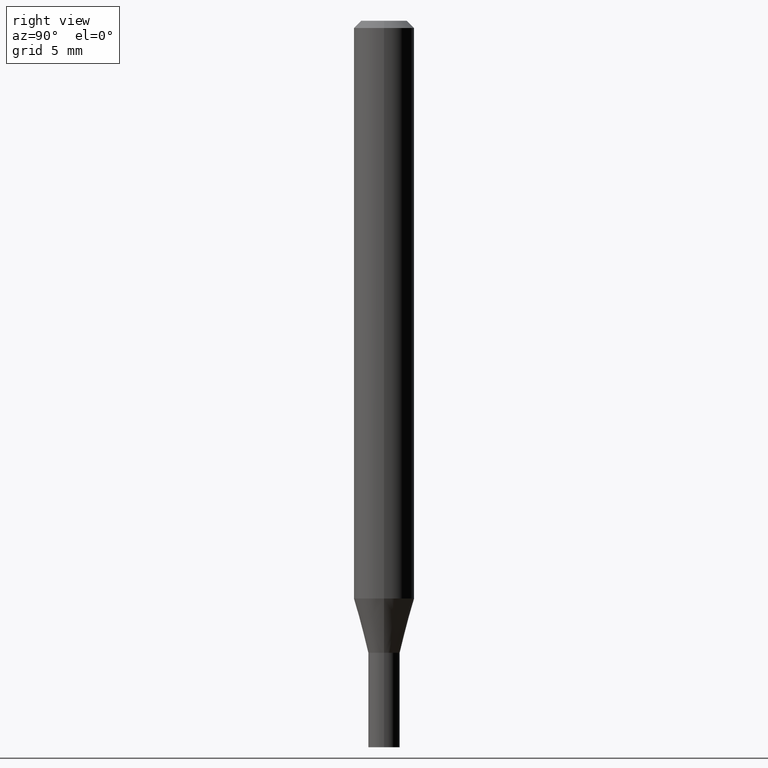
[diagram: clean part render]
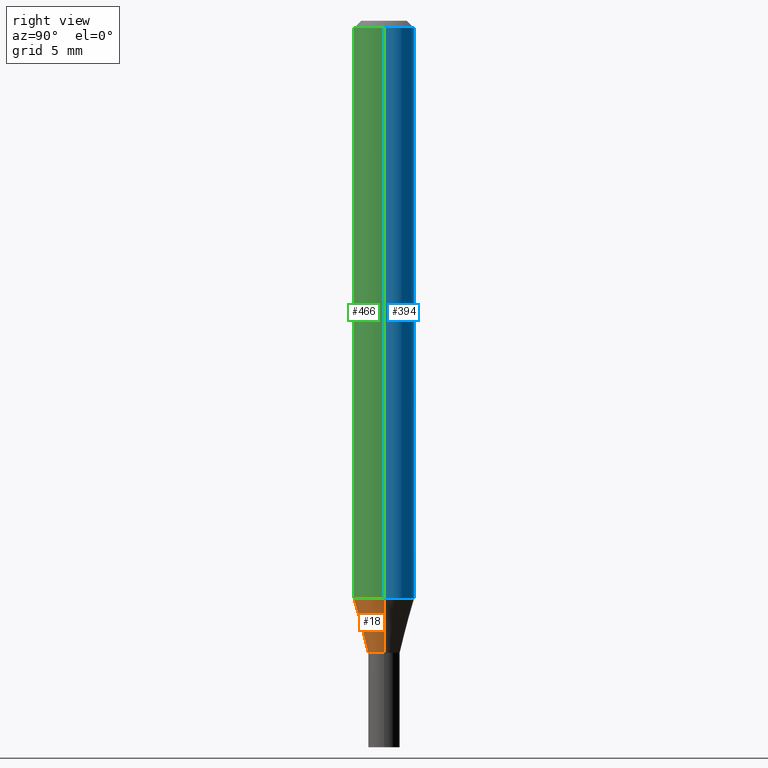
[diagram: same view with three faces highlighted in distinct colors, each labeled with its STEP entity id]
A machine part, right view with three faces highlighted in distinct colors.
Their STEP definitions:

[orange] entity #18 — the highlighted conical surface has half-angle 15 deg.
#14 = VERTEX_POINT ( 'NONE', #154 ) ;
#18 = ADVANCED_FACE ( 'NONE', ( #293 ), #266, .T. ) ;
#25 = DIRECTION ( 'NONE',  ( -2.445468806185136597E-29, 3.491481338843145583E-15, 1.000000000000000000 ) ) ;
#51 = CARTESIAN_POINT ( 'NONE',  ( 0.03249999999999991784, -4.783329434215109105E-15, -1.305000000000000160 ) ) ;
#68 = DIRECTION ( 'NONE',  ( -2.445468806185136597E-29, 3.491481338843145583E-15, 1.000000000000000000 ) ) ;
#76 = ORIENTED_EDGE ( 'NONE', *, *, #382, .T. ) ;
#121 = VERTEX_POINT ( 'NONE', #408 ) ;
#145 = EDGE_CURVE ( 'NONE', #427, #14, #377, .T. ) ;
#154 = CARTESIAN_POINT ( 'NONE',  ( -0.06250000000000000000, -3.721382364833005349E-15, -1.193038475772933760 ) ) ;
#170 = CARTESIAN_POINT ( 'NONE',  ( -0.03249999999999991784, -4.325456758068273381E-15, -1.305000000000000160 ) ) ;
#174 = AXIS2_PLACEMENT_3D ( 'NONE', #459, #68, #280 ) ;
#180 = LINE ( 'NONE', #323, #241 ) ;
#220 = ORIENTED_EDGE ( 'NONE', *, *, #145, .F. ) ;
#224 = DIRECTION ( 'NONE',  ( -0.2588190451025211836, 5.211531920934547886E-15, 0.9659258262890679791 ) ) ;
#241 = VECTOR ( 'NONE', #465, 39.37007874015748854 ) ;
#248 = EDGE_CURVE ( 'NONE', #14, #121, #352, .T. ) ;
#251 = AXIS2_PLACEMENT_3D ( 'NONE', #346, #344, #457 ) ;
#266 = CONICAL_SURFACE ( 'NONE', #414, 0.03249999999999991784, 0.2617993877991499074 ) ;
#280 = DIRECTION ( 'NONE',  ( 1.000000000000000000, -6.982962677686276177E-15, 0.000000000000000000 ) ) ;
#293 = FACE_OUTER_BOUND ( 'NONE', #442, .T. ) ;
#297 = CIRCLE ( 'NONE', #174, 0.03249999999999991784 ) ;
#303 = CARTESIAN_POINT ( 'NONE',  ( 3.191336792071603685E-29, -4.556383147190305752E-15, -1.305000000000000160 ) ) ;
#323 = CARTESIAN_POINT ( 'NONE',  ( 0.03249999999999991784, -4.783329434215109105E-15, -1.305000000000000160 ) ) ;
#334 = DIRECTION ( 'NONE',  ( 1.000000000000000000, -6.982962677686276177E-15, 0.000000000000000000 ) ) ;
#341 = EDGE_CURVE ( 'NONE', #427, #436, #297, .T. ) ;
#344 = DIRECTION ( 'NONE',  ( -2.445468806185136597E-29, 3.491481338843145583E-15, 1.000000000000000000 ) ) ;
#346 = CARTESIAN_POINT ( 'NONE',  ( 2.917538377081371069E-29, -4.165471574683068754E-15, -1.193038475772933760 ) ) ;
#352 = CIRCLE ( 'NONE', #251, 0.06250000000000000000 ) ;
#374 = ORIENTED_EDGE ( 'NONE', *, *, #248, .F. ) ;
#377 = LINE ( 'NONE', #170, #379 ) ;
#379 = VECTOR ( 'NONE', #224, 39.37007874015748854 ) ;
#382 = EDGE_CURVE ( 'NONE', #436, #121, #180, .T. ) ;
#406 = ORIENTED_EDGE ( 'NONE', *, *, #341, .T. ) ;
#408 = CARTESIAN_POINT ( 'NONE',  ( 0.06250000000000000000, -4.601906742038460423E-15, -1.193038475772933760 ) ) ;
#414 = AXIS2_PLACEMENT_3D ( 'NONE', #303, #25, #334 ) ;
#427 = VERTEX_POINT ( 'NONE', #437 ) ;
#436 = VERTEX_POINT ( 'NONE', #51 ) ;
#437 = CARTESIAN_POINT ( 'NONE',  ( -0.03249999999999991784, -4.023419561450638971E-15, -1.305000000000000160 ) ) ;
#442 = EDGE_LOOP ( 'NONE', ( #220, #406, #76, #374 ) ) ;
#457 = DIRECTION ( 'NONE',  ( 1.000000000000000000, -6.982962677686270655E-15, 0.000000000000000000 ) ) ;
#459 = CARTESIAN_POINT ( 'NONE',  ( 3.191336792071603685E-29, -4.556383147190305752E-15, -1.305000000000000160 ) ) ;
#465 = DIRECTION ( 'NONE',  ( 0.2588190451025211836, 1.565188264969622559E-15, 0.9659258262890679791 ) ) ;

[blue] entity #394 — the highlighted cylindrical surface (edge-blend (fillet) strip) has radius 1.5875 mm, axis along (-0, 0, 1).
#3 = ORIENTED_EDGE ( 'NONE', *, *, #453, .F. ) ;
#12 = CIRCLE ( 'NONE', #288, 0.06250000000000000000 ) ;
#14 = VERTEX_POINT ( 'NONE', #154 ) ;
#19 = VERTEX_POINT ( 'NONE', #86 ) ;
#43 = EDGE_CURVE ( 'NONE', #356, #19, #12, .T. ) ;
#50 = DIRECTION ( 'NONE',  ( 1.000000000000000000, -6.982962677686266711E-15, 0.000000000000000000 ) ) ;
#52 = EDGE_LOOP ( 'NONE', ( #302, #292, #325, #3 ) ) ;
#53 = DIRECTION ( 'NONE',  ( 1.000000000000000000, -6.982962677686270655E-15, 0.000000000000000000 ) ) ;
#58 = DIRECTION ( 'NONE',  ( -2.445468806185136597E-29, 3.491481338843145583E-15, 1.000000000000000000 ) ) ;
#77 = EDGE_CURVE ( 'NONE', #121, #14, #233, .T. ) ;
#82 = AXIS2_PLACEMENT_3D ( 'NONE', #464, #109, #250 ) ;
#86 = CARTESIAN_POINT ( 'NONE',  ( -0.06250000000000000000, -1.664832687532795300E-15, -0.01499999999999999944 ) ) ;
#91 = EDGE_CURVE ( 'NONE', #14, #19, #401, .T. ) ;
#109 = DIRECTION ( 'NONE',  ( -2.445468806185136597E-29, 3.491481338843145583E-15, 1.000000000000000000 ) ) ;
#111 = VECTOR ( 'NONE', #403, 39.37007874015748143 ) ;
#121 = VERTEX_POINT ( 'NONE', #408 ) ;
#144 = FACE_OUTER_BOUND ( 'NONE', #52, .T. ) ;
#154 = CARTESIAN_POINT ( 'NONE',  ( -0.06250000000000000000, -3.721382364833005349E-15, -1.193038475772933760 ) ) ;
#200 = AXIS2_PLACEMENT_3D ( 'NONE', #222, #439, #53 ) ;
#222 = CARTESIAN_POINT ( 'NONE',  ( 2.917538377081371069E-29, -4.165471574683068754E-15, -1.193038475772933760 ) ) ;
#228 = CARTESIAN_POINT ( 'NONE',  ( -0.06250000000000000000, 4.440892098500626162E-16, -3.074334431409316114E-30 ) ) ;
#233 = CIRCLE ( 'NONE', #200, 0.06250000000000000000 ) ;
#250 = DIRECTION ( 'NONE',  ( 1.000000000000000000, -6.982962677686266711E-15, 4.876176775795935793E-29 ) ) ;
#265 = DIRECTION ( 'NONE',  ( -2.445468806185136877E-29, 3.491481338843145188E-15, 1.000000000000000000 ) ) ;
#269 = VECTOR ( 'NONE', #265, 39.37007874015748143 ) ;
#285 = CYLINDRICAL_SURFACE ( 'NONE', #82, 0.06250000000000000000 ) ;
#288 = AXIS2_PLACEMENT_3D ( 'NONE', #371, #58, #50 ) ;
#292 = ORIENTED_EDGE ( 'NONE', *, *, #91, .T. ) ;
#302 = ORIENTED_EDGE ( 'NONE', *, *, #77, .T. ) ;
#325 = ORIENTED_EDGE ( 'NONE', *, *, #43, .F. ) ;
#356 = VERTEX_POINT ( 'NONE', #419 ) ;
#371 = CARTESIAN_POINT ( 'NONE',  ( 3.668203209277705088E-31, -5.237222008264718399E-17, -0.01499999999999999944 ) ) ;
#376 = LINE ( 'NONE', #449, #269 ) ;
#394 = ADVANCED_FACE ( 'NONE', ( #144 ), #285, .T. ) ;
#401 = LINE ( 'NONE', #228, #111 ) ;
#403 = DIRECTION ( 'NONE',  ( -2.445468806185136877E-29, 3.491481338843145188E-15, 1.000000000000000000 ) ) ;
#408 = CARTESIAN_POINT ( 'NONE',  ( 0.06250000000000000000, -4.601906742038460423E-15, -1.193038475772933760 ) ) ;
#419 = CARTESIAN_POINT ( 'NONE',  ( 0.06250000000000000000, -4.888073874380388472E-16, -0.01499999999999999944 ) ) ;
#439 = DIRECTION ( 'NONE',  ( -2.445468806185136597E-29, 3.491481338843145583E-15, 1.000000000000000000 ) ) ;
#449 = CARTESIAN_POINT ( 'NONE',  ( 0.06250000000000000000, -4.364351673553916694E-16, 3.047610484872459871E-30 ) ) ;
#453 = EDGE_CURVE ( 'NONE', #121, #356, #376, .T. ) ;
#464 = CARTESIAN_POINT ( 'NONE',  ( 0.000000000000000000, 0.000000000000000000, 0.000000000000000000 ) ) ;

[green] entity #466 — the highlighted cylindrical surface (edge-blend (fillet) strip) has radius 1.5875 mm, axis along (-0, 0, 1).
#14 = VERTEX_POINT ( 'NONE', #154 ) ;
#19 = VERTEX_POINT ( 'NONE', #86 ) ;
#27 = AXIS2_PLACEMENT_3D ( 'NONE', #54, #129, #273 ) ;
#45 = ORIENTED_EDGE ( 'NONE', *, *, #248, .T. ) ;
#54 = CARTESIAN_POINT ( 'NONE',  ( 0.000000000000000000, 0.000000000000000000, 0.000000000000000000 ) ) ;
#86 = CARTESIAN_POINT ( 'NONE',  ( -0.06250000000000000000, -1.664832687532795300E-15, -0.01499999999999999944 ) ) ;
#91 = EDGE_CURVE ( 'NONE', #14, #19, #401, .T. ) ;
#93 = FACE_OUTER_BOUND ( 'NONE', #163, .T. ) ;
#111 = VECTOR ( 'NONE', #403, 39.37007874015748143 ) ;
#121 = VERTEX_POINT ( 'NONE', #408 ) ;
#129 = DIRECTION ( 'NONE',  ( -2.445468806185136597E-29, 3.491481338843145583E-15, 1.000000000000000000 ) ) ;
#154 = CARTESIAN_POINT ( 'NONE',  ( -0.06250000000000000000, -3.721382364833005349E-15, -1.193038475772933760 ) ) ;
#155 = ORIENTED_EDGE ( 'NONE', *, *, #91, .F. ) ;
#163 = EDGE_LOOP ( 'NONE', ( #155, #45, #365, #249 ) ) ;
#228 = CARTESIAN_POINT ( 'NONE',  ( -0.06250000000000000000, 4.440892098500626162E-16, -3.074334431409316114E-30 ) ) ;
#235 = DIRECTION ( 'NONE',  ( -2.445468806185136597E-29, 3.491481338843145583E-15, 1.000000000000000000 ) ) ;
#248 = EDGE_CURVE ( 'NONE', #14, #121, #352, .T. ) ;
#249 = ORIENTED_EDGE ( 'NONE', *, *, #291, .F. ) ;
#251 = AXIS2_PLACEMENT_3D ( 'NONE', #346, #344, #457 ) ;
#265 = DIRECTION ( 'NONE',  ( -2.445468806185136877E-29, 3.491481338843145188E-15, 1.000000000000000000 ) ) ;
#269 = VECTOR ( 'NONE', #265, 39.37007874015748143 ) ;
#273 = DIRECTION ( 'NONE',  ( 1.000000000000000000, -6.982962677686266711E-15, 4.876176775795935793E-29 ) ) ;
#281 = CARTESIAN_POINT ( 'NONE',  ( 3.668203209277705088E-31, -5.237222008264718399E-17, -0.01499999999999999944 ) ) ;
#291 = EDGE_CURVE ( 'NONE', #19, #356, #314, .T. ) ;
#311 = CYLINDRICAL_SURFACE ( 'NONE', #27, 0.06250000000000000000 ) ;
#314 = CIRCLE ( 'NONE', #433, 0.06250000000000000000 ) ;
#344 = DIRECTION ( 'NONE',  ( -2.445468806185136597E-29, 3.491481338843145583E-15, 1.000000000000000000 ) ) ;
#346 = CARTESIAN_POINT ( 'NONE',  ( 2.917538377081371069E-29, -4.165471574683068754E-15, -1.193038475772933760 ) ) ;
#352 = CIRCLE ( 'NONE', #251, 0.06250000000000000000 ) ;
#356 = VERTEX_POINT ( 'NONE', #419 ) ;
#365 = ORIENTED_EDGE ( 'NONE', *, *, #453, .T. ) ;
#376 = LINE ( 'NONE', #449, #269 ) ;
#383 = DIRECTION ( 'NONE',  ( 1.000000000000000000, -6.982962677686266711E-15, 0.000000000000000000 ) ) ;
#401 = LINE ( 'NONE', #228, #111 ) ;
#403 = DIRECTION ( 'NONE',  ( -2.445468806185136877E-29, 3.491481338843145188E-15, 1.000000000000000000 ) ) ;
#408 = CARTESIAN_POINT ( 'NONE',  ( 0.06250000000000000000, -4.601906742038460423E-15, -1.193038475772933760 ) ) ;
#419 = CARTESIAN_POINT ( 'NONE',  ( 0.06250000000000000000, -4.888073874380388472E-16, -0.01499999999999999944 ) ) ;
#433 = AXIS2_PLACEMENT_3D ( 'NONE', #281, #235, #383 ) ;
#449 = CARTESIAN_POINT ( 'NONE',  ( 0.06250000000000000000, -4.364351673553916694E-16, 3.047610484872459871E-30 ) ) ;
#453 = EDGE_CURVE ( 'NONE', #121, #356, #376, .T. ) ;
#457 = DIRECTION ( 'NONE',  ( 1.000000000000000000, -6.982962677686270655E-15, 0.000000000000000000 ) ) ;
#466 = ADVANCED_FACE ( 'NONE', ( #93 ), #311, .T. ) ;